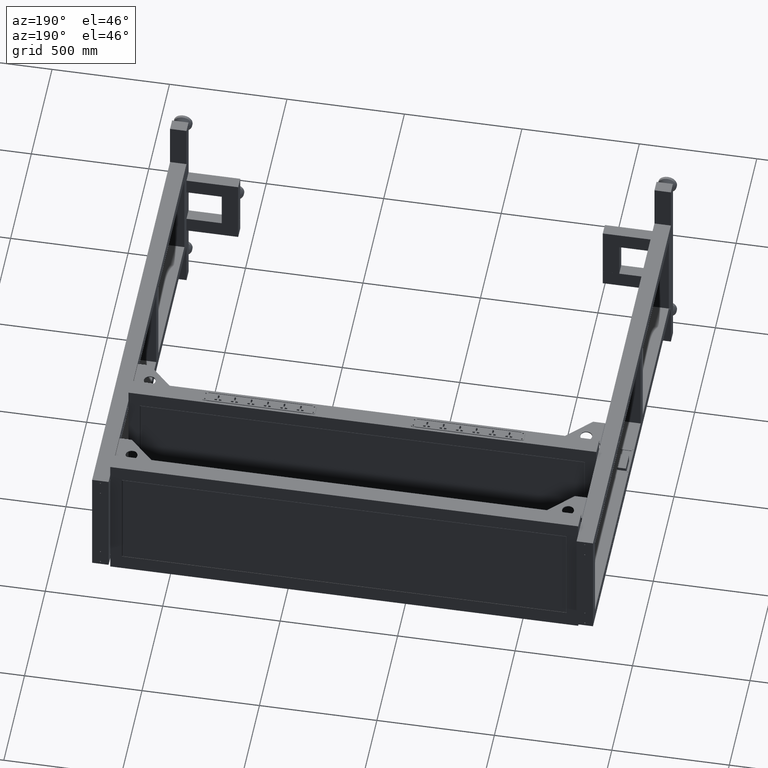
[diagram: clean part render]
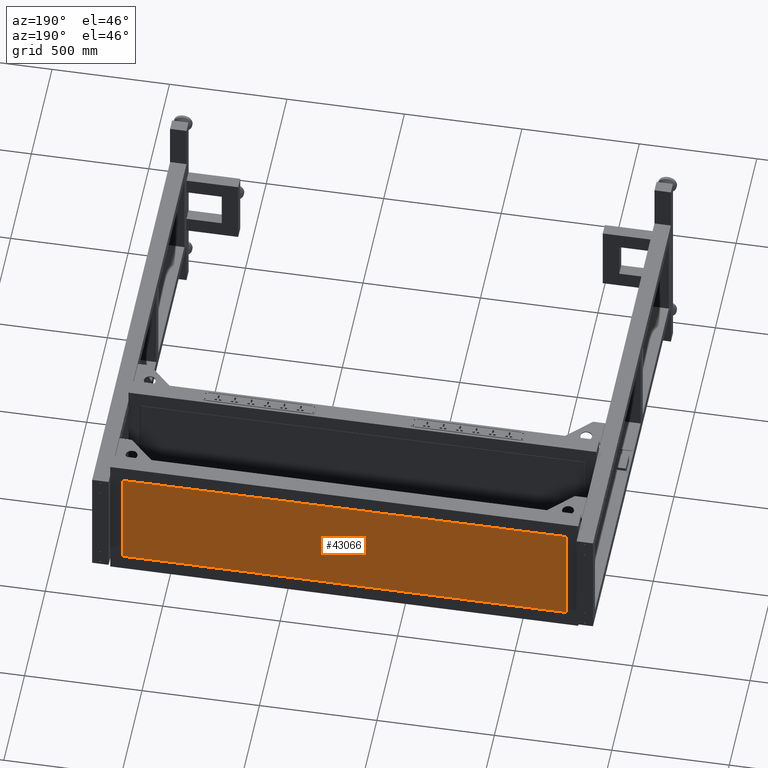
[diagram: same view with one face highlighted and labeled with its STEP entity id]
A machine part, auxiliary view. The second image highlights one B-rep face of the part: STEP entity #43066.
In plain terms, the highlighted planar face has unit normal (0, 1, 0).
Its self-contained STEP definition (entity closure, byte-faithful):
#39 = CARTESIAN_POINT ( 'NONE',  ( -1216.662487437185973, 996.9410804020130854, -228.4899999999988438 ) ) ;
#989 = VERTEX_POINT ( 'NONE', #42828 ) ;
#4428 = LINE ( 'NONE', #6743, #57291 ) ;
#4989 = EDGE_CURVE ( 'NONE', #5243, #53577, #13539, .T. ) ;
#5243 = VERTEX_POINT ( 'NONE', #35187 ) ;
#6743 = CARTESIAN_POINT ( 'NONE',  ( 672.3175125628159776, 996.9410804020134265, -228.4899999999988438 ) ) ;
#7495 = ORIENTED_EDGE ( 'NONE', *, *, #4989, .T. ) ;
#8455 = ORIENTED_EDGE ( 'NONE', *, *, #80421, .T. ) ;
#13539 = LINE ( 'NONE', #57329, #55591 ) ;
#16975 = CARTESIAN_POINT ( 'NONE',  ( -1424.662487437185973, 996.9410804020126307, 228.4900000000011744 ) ) ;
#17437 = EDGE_CURVE ( 'NONE', #53577, #989, #57129, .T. ) ;
#18115 = FACE_OUTER_BOUND ( 'NONE', #35476, .T. ) ;
#21055 = DIRECTION ( 'NONE',  ( 0.000000000000000000, -1.000000000000000472E-15, 1.000000000000000000 ) ) ;
#23121 = ORIENTED_EDGE ( 'NONE', *, *, #76437, .F. ) ;
#28979 = DIRECTION ( 'NONE',  ( 2.653611717788264139E-31, -1.000000000000000472E-15, 1.000000000000000000 ) ) ;
#30035 = CARTESIAN_POINT ( 'NONE',  ( -226.1724874371860494, 996.9410804020128580, 1.167234175856414311E-12 ) ) ;
#30112 = DIRECTION ( 'NONE',  ( 1.000000000000000000, 0.000000000000000000, -0.000000000000000000 ) ) ;
#30215 = AXIS2_PLACEMENT_3D ( 'NONE', #30035, #60724, #41482 ) ;
#32745 = CARTESIAN_POINT ( 'NONE',  ( 672.3175125628159776, 996.9410804020129717, 228.4900000000011744 ) ) ;
#35187 = CARTESIAN_POINT ( 'NONE',  ( 672.3175125628159776, 996.9410804020134265, -228.4899999999988438 ) ) ;
#35476 = EDGE_LOOP ( 'NONE', ( #8455, #23121, #7495, #66143 ) ) ;
#38908 = DIRECTION ( 'NONE',  ( -1.000000000000000000, 0.000000000000000000, 0.000000000000000000 ) ) ;
#41482 = DIRECTION ( 'NONE',  ( 0.000000000000000000, -1.000000000000000472E-15, 1.000000000000000000 ) ) ;
#41889 = PLANE ( 'NONE',  #30215 ) ;
#42828 = CARTESIAN_POINT ( 'NONE',  ( -1216.662487437185973, 996.9410804020126307, 228.4900000000011744 ) ) ;
#43066 = ADVANCED_FACE ( 'NONE', ( #18115 ), #41889, .T. ) ;
#46453 = CARTESIAN_POINT ( 'NONE',  ( -1216.662487437185973, 996.9410804020130854, -228.4899999999988438 ) ) ;
#49367 = VERTEX_POINT ( 'NONE', #32745 ) ;
#53577 = VERTEX_POINT ( 'NONE', #39 ) ;
#55064 = LINE ( 'NONE', #16975, #79890 ) ;
#55591 = VECTOR ( 'NONE', #38908, 1000.000000000000000 ) ;
#57129 = LINE ( 'NONE', #46453, #78673 ) ;
#57291 = VECTOR ( 'NONE', #28979, 1000.000000000000000 ) ;
#57329 = CARTESIAN_POINT ( 'NONE',  ( 972.3175125628140449, 996.9410804020130854, -228.4899999999988438 ) ) ;
#60724 = DIRECTION ( 'NONE',  ( 0.000000000000000000, 1.000000000000000000, 1.000000000000000472E-15 ) ) ;
#66143 = ORIENTED_EDGE ( 'NONE', *, *, #17437, .T. ) ;
#76437 = EDGE_CURVE ( 'NONE', #5243, #49367, #4428, .T. ) ;
#78673 = VECTOR ( 'NONE', #21055, 1000.000000000000000 ) ;
#79890 = VECTOR ( 'NONE', #30112, 1000.000000000000000 ) ;
#80421 = EDGE_CURVE ( 'NONE', #989, #49367, #55064, .T. ) ;